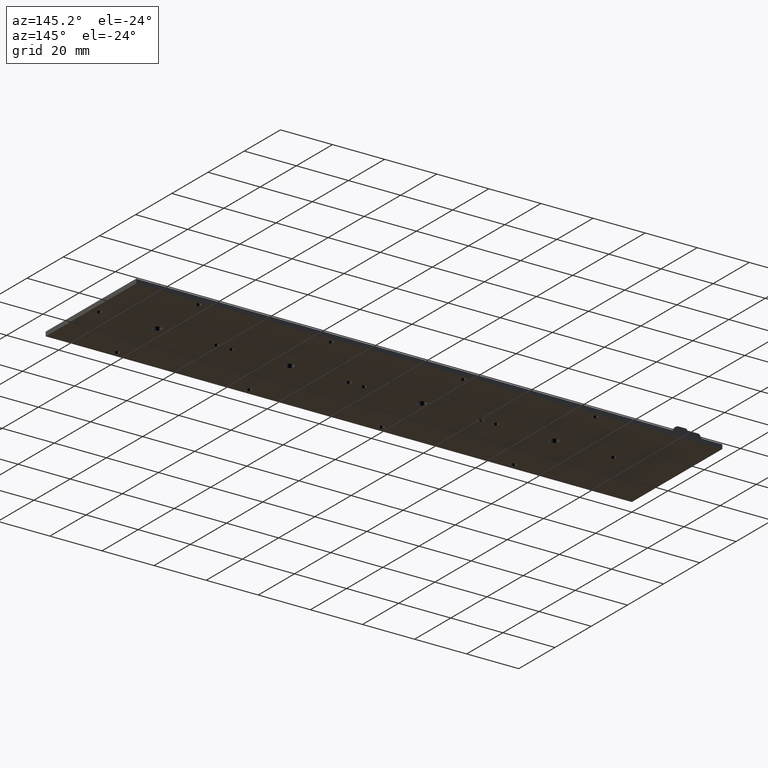
[diagram: clean part render]
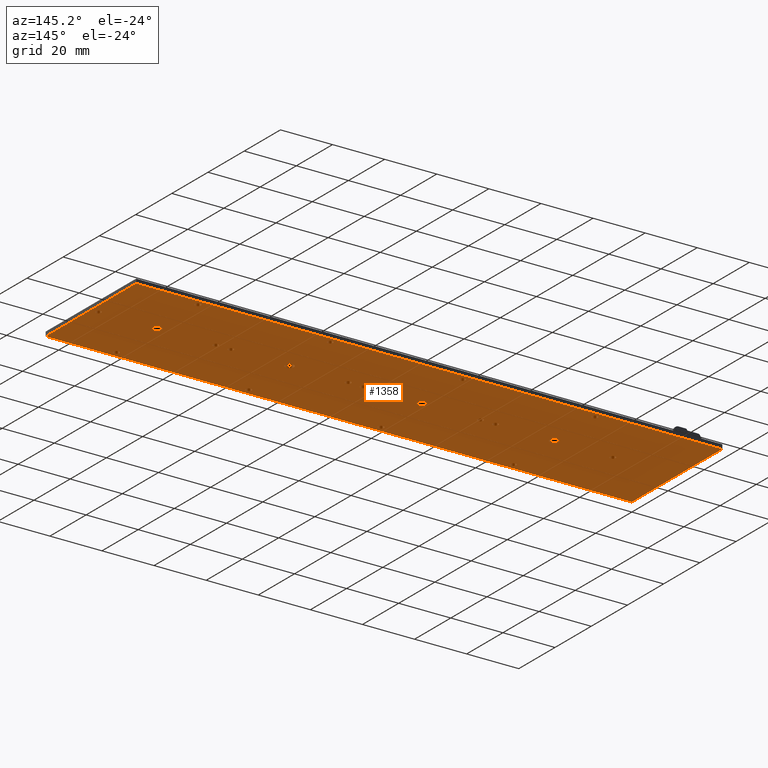
[diagram: same view with one face highlighted and labeled with its STEP entity id]
A machine part, auxiliary view. The second image highlights one B-rep face of the part: STEP entity #1358.
In plain terms, the highlighted planar face has unit normal (0, 0, 1).
Its self-contained STEP definition (entity closure, byte-faithful):
#1096=FACE_BOUND('',#2059,.T.);
#1097=FACE_BOUND('',#2060,.T.);
#1098=FACE_BOUND('',#2061,.T.);
#1099=FACE_BOUND('',#2062,.T.);
#1100=FACE_BOUND('',#2063,.T.);
#1101=FACE_BOUND('',#2064,.T.);
#1102=FACE_BOUND('',#2065,.T.);
#1103=FACE_BOUND('',#2066,.T.);
#1104=FACE_BOUND('',#2067,.T.);
#1105=FACE_BOUND('',#2068,.T.);
#1106=FACE_BOUND('',#2069,.T.);
#1107=FACE_BOUND('',#2070,.T.);
#1108=FACE_BOUND('',#2071,.T.);
#1109=FACE_BOUND('',#2072,.T.);
#1110=FACE_BOUND('',#2073,.T.);
#1111=FACE_BOUND('',#2074,.T.);
#1112=FACE_BOUND('',#2075,.T.);
#1113=FACE_BOUND('',#2076,.T.);
#1114=FACE_BOUND('',#2077,.T.);
#1115=FACE_BOUND('',#2078,.T.);
#1116=FACE_BOUND('',#2079,.T.);
#1149=CIRCLE('',#6049,1.65);
#1151=CIRCLE('',#6052,1.1);
#1153=CIRCLE('',#6055,1.05);
#1155=CIRCLE('',#6058,1.1);
#1157=CIRCLE('',#6061,1.1);
#1159=CIRCLE('',#6064,1.65);
#1161=CIRCLE('',#6067,1.1);
#1163=CIRCLE('',#6070,1.1);
#1165=CIRCLE('',#6073,1.1);
#1167=CIRCLE('',#6076,1.1);
#1169=CIRCLE('',#6079,1.65);
#1171=CIRCLE('',#6082,1.1);
#1173=CIRCLE('',#6085,1.05);
#1175=CIRCLE('',#6088,1.05);
#1177=CIRCLE('',#6091,1.05);
#1179=CIRCLE('',#6094,1.65);
#1181=CIRCLE('',#6097,1.1);
#1183=CIRCLE('',#6100,1.1);
#1185=CIRCLE('',#6103,1.05);
#1187=CIRCLE('',#6107,1.1);
#1358=ADVANCED_FACE('',(#1096,#1097,#1098,#1099,#1100,#1101,#1102,#1103,
#1104,#1105,#1106,#1107,#1108,#1109,#1110,#1111,#1112,#1113,#1114,#1115,
#1116),#1609,.F.);
#1609=PLANE('',#6110);
#2059=EDGE_LOOP('',(#2408,#2409,#2410,#2411));
#2060=EDGE_LOOP('',(#2412));
#2061=EDGE_LOOP('',(#2413));
#2062=EDGE_LOOP('',(#2414));
#2063=EDGE_LOOP('',(#2415));
#2064=EDGE_LOOP('',(#2416));
#2065=EDGE_LOOP('',(#2417));
#2066=EDGE_LOOP('',(#2418));
#2067=EDGE_LOOP('',(#2419));
#2068=EDGE_LOOP('',(#2420));
#2069=EDGE_LOOP('',(#2421));
#2070=EDGE_LOOP('',(#2422));
#2071=EDGE_LOOP('',(#2423));
#2072=EDGE_LOOP('',(#2424));
#2073=EDGE_LOOP('',(#2425));
#2074=EDGE_LOOP('',(#2426));
#2075=EDGE_LOOP('',(#2427));
#2076=EDGE_LOOP('',(#2428));
#2077=EDGE_LOOP('',(#2429));
#2078=EDGE_LOOP('',(#2430));
#2079=EDGE_LOOP('',(#2431));
#2408=ORIENTED_EDGE('',*,*,#4308,.T.);
#2409=ORIENTED_EDGE('',*,*,#4312,.T.);
#2410=ORIENTED_EDGE('',*,*,#4315,.T.);
#2411=ORIENTED_EDGE('',*,*,#4355,.T.);
#2412=ORIENTED_EDGE('',*,*,#4352,.T.);
#2413=ORIENTED_EDGE('',*,*,#4350,.T.);
#2414=ORIENTED_EDGE('',*,*,#4348,.T.);
#2415=ORIENTED_EDGE('',*,*,#4346,.T.);
#2416=ORIENTED_EDGE('',*,*,#4344,.T.);
#2417=ORIENTED_EDGE('',*,*,#4342,.T.);
#2418=ORIENTED_EDGE('',*,*,#4340,.T.);
#2419=ORIENTED_EDGE('',*,*,#4338,.T.);
#2420=ORIENTED_EDGE('',*,*,#4336,.T.);
#2421=ORIENTED_EDGE('',*,*,#4334,.T.);
#2422=ORIENTED_EDGE('',*,*,#4332,.T.);
#2423=ORIENTED_EDGE('',*,*,#4330,.T.);
#2424=ORIENTED_EDGE('',*,*,#4328,.T.);
#2425=ORIENTED_EDGE('',*,*,#4326,.T.);
#2426=ORIENTED_EDGE('',*,*,#4324,.T.);
#2427=ORIENTED_EDGE('',*,*,#4322,.T.);
#2428=ORIENTED_EDGE('',*,*,#4320,.T.);
#2429=ORIENTED_EDGE('',*,*,#4318,.T.);
#2430=ORIENTED_EDGE('',*,*,#4316,.T.);
#2431=ORIENTED_EDGE('',*,*,#4356,.T.);
#3812=VERTEX_POINT('',#8016);
#3813=VERTEX_POINT('',#8018);
#3815=VERTEX_POINT('',#8024);
#3817=VERTEX_POINT('',#8030);
#3818=VERTEX_POINT('',#8034);
#3820=VERTEX_POINT('',#8039);
#3822=VERTEX_POINT('',#8044);
#3824=VERTEX_POINT('',#8049);
#3826=VERTEX_POINT('',#8054);
#3828=VERTEX_POINT('',#8059);
#3830=VERTEX_POINT('',#8064);
#3832=VERTEX_POINT('',#8069);
#3834=VERTEX_POINT('',#8074);
#3836=VERTEX_POINT('',#8079);
#3838=VERTEX_POINT('',#8084);
#3840=VERTEX_POINT('',#8089);
#3842=VERTEX_POINT('',#8094);
#3844=VERTEX_POINT('',#8099);
#3846=VERTEX_POINT('',#8104);
#3848=VERTEX_POINT('',#8109);
#3850=VERTEX_POINT('',#8114);
#3852=VERTEX_POINT('',#8119);
#3854=VERTEX_POINT('',#8124);
#3856=VERTEX_POINT('',#8132);
#4308=EDGE_CURVE('',#3813,#3812,#5037,.T.);
#4312=EDGE_CURVE('',#3812,#3815,#5041,.T.);
#4315=EDGE_CURVE('',#3815,#3817,#5044,.T.);
#4316=EDGE_CURVE('',#3818,#3818,#1149,.T.);
#4318=EDGE_CURVE('',#3820,#3820,#1151,.T.);
#4320=EDGE_CURVE('',#3822,#3822,#1153,.T.);
#4322=EDGE_CURVE('',#3824,#3824,#1155,.T.);
#4324=EDGE_CURVE('',#3826,#3826,#1157,.T.);
#4326=EDGE_CURVE('',#3828,#3828,#1159,.T.);
#4328=EDGE_CURVE('',#3830,#3830,#1161,.T.);
#4330=EDGE_CURVE('',#3832,#3832,#1163,.T.);
#4332=EDGE_CURVE('',#3834,#3834,#1165,.T.);
#4334=EDGE_CURVE('',#3836,#3836,#1167,.T.);
#4336=EDGE_CURVE('',#3838,#3838,#1169,.T.);
#4338=EDGE_CURVE('',#3840,#3840,#1171,.T.);
#4340=EDGE_CURVE('',#3842,#3842,#1173,.T.);
#4342=EDGE_CURVE('',#3844,#3844,#1175,.T.);
#4344=EDGE_CURVE('',#3846,#3846,#1177,.T.);
#4346=EDGE_CURVE('',#3848,#3848,#1179,.T.);
#4348=EDGE_CURVE('',#3850,#3850,#1181,.T.);
#4350=EDGE_CURVE('',#3852,#3852,#1183,.T.);
#4352=EDGE_CURVE('',#3854,#3854,#1185,.T.);
#4355=EDGE_CURVE('',#3817,#3813,#5046,.T.);
#4356=EDGE_CURVE('',#3856,#3856,#1187,.T.);
#5037=LINE('',#8017,#5542);
#5041=LINE('',#8025,#5546);
#5044=LINE('',#8031,#5549);
#5046=LINE('',#8129,#5551);
#5542=VECTOR('',#6536,1.);
#5546=VECTOR('',#6542,1.);
#5549=VECTOR('',#6547,1.);
#5551=VECTOR('',#6665,1.);
#6049=AXIS2_PLACEMENT_3D('',#8033,#6550,#6551);
#6052=AXIS2_PLACEMENT_3D('',#8038,#6556,#6557);
#6055=AXIS2_PLACEMENT_3D('',#8043,#6562,#6563);
#6058=AXIS2_PLACEMENT_3D('',#8048,#6568,#6569);
#6061=AXIS2_PLACEMENT_3D('',#8053,#6574,#6575);
#6064=AXIS2_PLACEMENT_3D('',#8058,#6580,#6581);
#6067=AXIS2_PLACEMENT_3D('',#8063,#6586,#6587);
#6070=AXIS2_PLACEMENT_3D('',#8068,#6592,#6593);
#6073=AXIS2_PLACEMENT_3D('',#8073,#6598,#6599);
#6076=AXIS2_PLACEMENT_3D('',#8078,#6604,#6605);
#6079=AXIS2_PLACEMENT_3D('',#8083,#6610,#6611);
#6082=AXIS2_PLACEMENT_3D('',#8088,#6616,#6617);
#6085=AXIS2_PLACEMENT_3D('',#8093,#6622,#6623);
#6088=AXIS2_PLACEMENT_3D('',#8098,#6628,#6629);
#6091=AXIS2_PLACEMENT_3D('',#8103,#6634,#6635);
#6094=AXIS2_PLACEMENT_3D('',#8108,#6640,#6641);
#6097=AXIS2_PLACEMENT_3D('',#8113,#6646,#6647);
#6100=AXIS2_PLACEMENT_3D('',#8118,#6652,#6653);
#6103=AXIS2_PLACEMENT_3D('',#8123,#6658,#6659);
#6107=AXIS2_PLACEMENT_3D('',#8131,#6668,#6669);
#6110=AXIS2_PLACEMENT_3D('',#8136,#6674,#6675);
#6536=DIRECTION('',(1.,0.,0.));
#6542=DIRECTION('',(0.,-1.,0.));
#6547=DIRECTION('',(-1.,0.,0.));
#6550=DIRECTION('',(0.,0.,1.));
#6551=DIRECTION('',(0.999999999999999,0.,0.));
#6556=DIRECTION('',(0.,0.,1.));
#6557=DIRECTION('',(0.999999999999997,0.,0.));
#6562=DIRECTION('',(0.,0.,1.));
#6563=DIRECTION('',(1.,0.,0.));
#6568=DIRECTION('',(0.,0.,1.));
#6569=DIRECTION('',(1.,0.,0.));
#6574=DIRECTION('',(0.,0.,1.));
#6575=DIRECTION('',(1.,0.,0.));
#6580=DIRECTION('',(0.,0.,1.));
#6581=DIRECTION('',(0.999999999999999,0.,0.));
#6586=DIRECTION('',(0.,0.,1.));
#6587=DIRECTION('',(1.,0.,0.));
#6592=DIRECTION('',(0.,0.,1.));
#6593=DIRECTION('',(1.,0.,0.));
#6598=DIRECTION('',(0.,0.,1.));
#6599=DIRECTION('',(1.,0.,0.));
#6604=DIRECTION('',(0.,0.,1.));
#6605=DIRECTION('',(0.999999999999991,0.,0.));
#6610=DIRECTION('',(0.,0.,1.));
#6611=DIRECTION('',(1.00000000000001,0.,0.));
#6616=DIRECTION('',(0.,0.,1.));
#6617=DIRECTION('',(0.999999999999991,0.,0.));
#6622=DIRECTION('',(0.,0.,1.));
#6623=DIRECTION('',(0.999999999999995,0.,0.));
#6628=DIRECTION('',(0.,0.,1.));
#6629=DIRECTION('',(0.999999999999995,0.,0.));
#6634=DIRECTION('',(0.,0.,1.));
#6635=DIRECTION('',(0.999999999999995,0.,0.));
#6640=DIRECTION('',(0.,0.,1.));
#6641=DIRECTION('',(1.00000000000001,0.,0.));
#6646=DIRECTION('',(0.,0.,1.));
#6647=DIRECTION('',(0.999999999999991,0.,0.));
#6652=DIRECTION('',(0.,0.,1.));
#6653=DIRECTION('',(0.999999999999991,0.,0.));
#6658=DIRECTION('',(0.,0.,1.));
#6659=DIRECTION('',(0.999999999999995,0.,0.));
#6665=DIRECTION('',(0.,1.,0.));
#6668=DIRECTION('',(0.,0.,1.));
#6669=DIRECTION('',(1.,0.,0.));
#6674=DIRECTION('',(0.,0.,1.));
#6675=DIRECTION('',(1.,0.,0.));
#8016=CARTESIAN_POINT('',(225.,50.,-1.65));
#8017=CARTESIAN_POINT('',(0.,50.,-1.65));
#8018=CARTESIAN_POINT('',(0.,50.,-1.65));
#8024=CARTESIAN_POINT('',(225.,0.,-1.65));
#8025=CARTESIAN_POINT('',(225.,50.,-1.65));
#8030=CARTESIAN_POINT('',(0.,0.,-1.65));
#8031=CARTESIAN_POINT('',(225.,0.,-1.65));
#8033=CARTESIAN_POINT('',(47.2,25.,-1.65));
#8034=CARTESIAN_POINT('',(48.85,25.,-1.65));
#8038=CARTESIAN_POINT('',(47.2,47.5,-1.65));
#8039=CARTESIAN_POINT('',(48.3,47.5,-1.65));
#8043=CARTESIAN_POINT('',(47.2,2.5,-1.65));
#8044=CARTESIAN_POINT('',(48.25,2.5,-1.65));
#8048=CARTESIAN_POINT('',(69.7,25.,-1.65));
#8049=CARTESIAN_POINT('',(70.8,25.,-1.65));
#8053=CARTESIAN_POINT('',(75.5,25.,-1.65));
#8054=CARTESIAN_POINT('',(76.6,25.,-1.65));
#8058=CARTESIAN_POINT('',(98.,25.,-1.65));
#8059=CARTESIAN_POINT('',(99.65,25.,-1.65));
#8063=CARTESIAN_POINT('',(98.,2.5,-1.65));
#8064=CARTESIAN_POINT('',(99.1,2.5,-1.65));
#8068=CARTESIAN_POINT('',(98.,47.5,-1.65));
#8069=CARTESIAN_POINT('',(99.1,47.5,-1.65));
#8073=CARTESIAN_POINT('',(120.5,25.,-1.65));
#8074=CARTESIAN_POINT('',(121.6,25.,-1.65));
#8078=CARTESIAN_POINT('',(126.3,25.,-1.65));
#8079=CARTESIAN_POINT('',(127.4,25.,-1.65));
#8083=CARTESIAN_POINT('',(148.8,25.,-1.65));
#8084=CARTESIAN_POINT('',(150.45,25.,-1.65));
#8088=CARTESIAN_POINT('',(148.8,2.5,-1.65));
#8089=CARTESIAN_POINT('',(149.9,2.5,-1.65));
#8093=CARTESIAN_POINT('',(148.8,47.5,-1.65));
#8094=CARTESIAN_POINT('',(149.85,47.5,-1.65));
#8098=CARTESIAN_POINT('',(171.3,25.,-1.65));
#8099=CARTESIAN_POINT('',(172.35,25.,-1.65));
#8103=CARTESIAN_POINT('',(177.1,25.,-1.65));
#8104=CARTESIAN_POINT('',(178.15,25.,-1.65));
#8108=CARTESIAN_POINT('',(199.6,25.,-1.65));
#8109=CARTESIAN_POINT('',(201.25,25.,-1.65));
#8113=CARTESIAN_POINT('',(199.6,2.5,-1.65));
#8114=CARTESIAN_POINT('',(200.7,2.5,-1.65));
#8118=CARTESIAN_POINT('',(199.6,47.5,-1.65));
#8119=CARTESIAN_POINT('',(200.7,47.5,-1.65));
#8123=CARTESIAN_POINT('',(222.1,25.,-1.65));
#8124=CARTESIAN_POINT('',(223.15,25.,-1.65));
#8129=CARTESIAN_POINT('',(0.,0.,-1.65));
#8131=CARTESIAN_POINT('',(24.7,25.,-1.65));
#8132=CARTESIAN_POINT('',(25.8,25.,-1.65));
#8136=CARTESIAN_POINT('',(222.1,25.,-1.65));